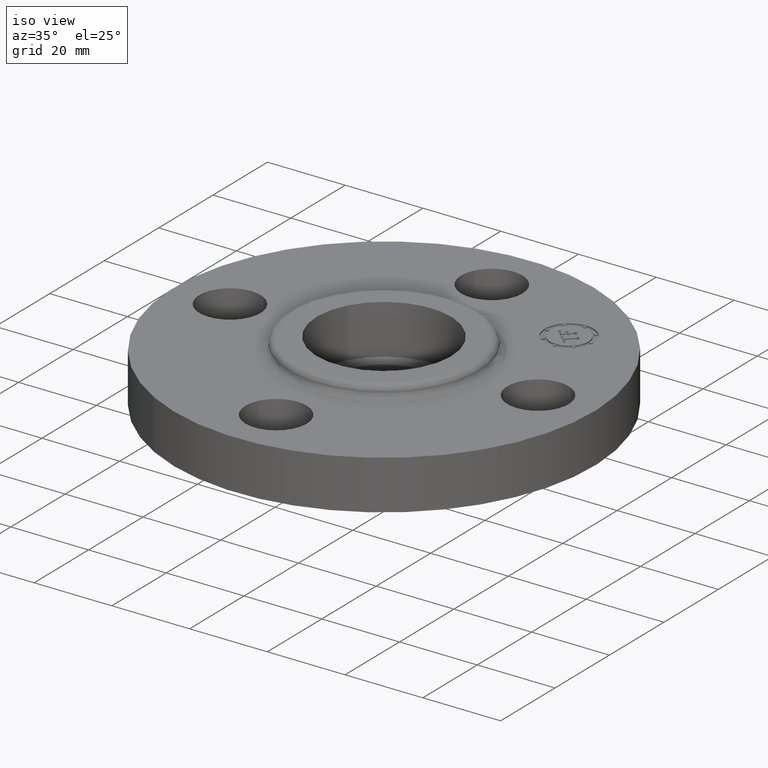
[diagram: clean part render]
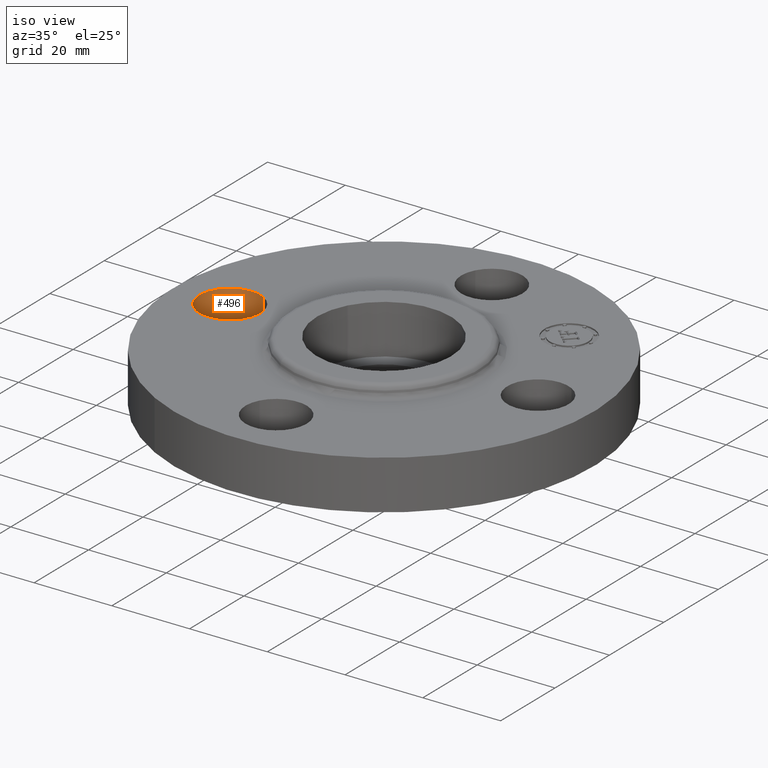
[diagram: same view with one face highlighted and labeled with its STEP entity id]
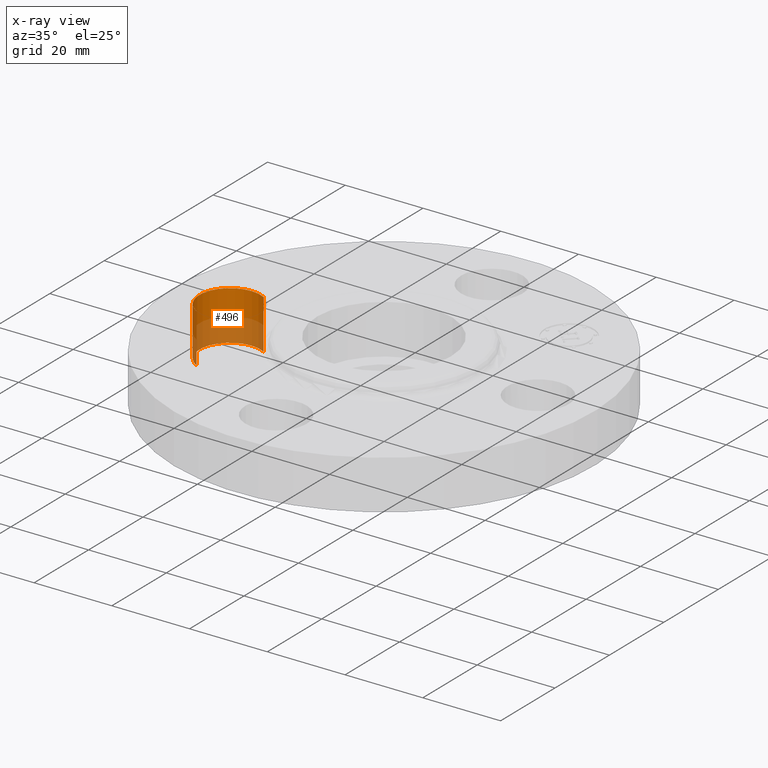
[diagram: x-ray of the same camera — body ghosted, the highlighted face saturated]
A machine part, iso view. The second image highlights one B-rep face of the part: STEP entity #496.
The next image is the same camera in x-ray: the body ghosted, the highlighted face saturated — about 46% of this face is hidden behind the body in this view.
In plain terms, the highlighted cylindrical surface (partial cylindrical patch) has radius 7.874 mm, axis along (0, 0, -1).
Its self-contained STEP definition (entity closure, byte-faithful):
#392=AXIS2_PLACEMENT_3D('Circle Axis2P3D',#390,#391,$) ;
#469=AXIS2_PLACEMENT_3D('Cylinder Axis2P3D',#466,#467,#468) ;
#487=AXIS2_PLACEMENT_3D('Circle Axis2P3D',#485,#486,$) ;
#387=CARTESIAN_POINT('Vertex',(-1.41137808304,0.272050594187,0.)) ;
#390=CARTESIAN_POINT('Axis2P3D Location',(-1.56000000001,-2.79741234551E-016,0.)) ;
#394=CARTESIAN_POINT('Vertex',(-1.70862191697,-0.272050594187,0.)) ;
#466=CARTESIAN_POINT('Axis2P3D Location',(-1.56000000001,-2.86567351002E-016,0.496062992128)) ;
#471=CARTESIAN_POINT('Line Origine',(-1.70862191697,-0.272050594187,0.250000000001)) ;
#475=CARTESIAN_POINT('Vertex',(-1.70862191697,-0.272050594187,0.500000000002)) ;
#478=CARTESIAN_POINT('Line Origine',(-1.41137808304,0.272050594187,0.250000000001)) ;
#482=CARTESIAN_POINT('Vertex',(-1.41137808304,0.272050594187,0.500000000002)) ;
#485=CARTESIAN_POINT('Axis2P3D Location',(-1.56000000001,-2.86567351002E-016,0.500000000002)) ;
#391=DIRECTION('Axis2P3D Direction',(0.,0.,-0.0393700787402)) ;
#467=DIRECTION('Axis2P3D Direction',(0.,0.,-0.0393700787402)) ;
#468=DIRECTION('Axis2P3D XDirection',(0.0188750212049,0.0345504945626,0.)) ;
#472=DIRECTION('Vector Direction',(0.,0.,-0.0393700787402)) ;
#479=DIRECTION('Vector Direction',(0.,0.,-0.0393700787402)) ;
#486=DIRECTION('Axis2P3D Direction',(0.,0.,-0.0393700787402)) ;
#473=VECTOR('Line Direction',#472,0.0393700787402) ;
#480=VECTOR('Line Direction',#479,0.0393700787402) ;
#491=ORIENTED_EDGE('',*,*,#477,.F.) ;
#492=ORIENTED_EDGE('',*,*,#396,.T.) ;
#493=ORIENTED_EDGE('',*,*,#484,.T.) ;
#494=ORIENTED_EDGE('',*,*,#489,.F.) ;
#496=ADVANCED_FACE('PartBody',(#495),#470,.F.) ;
#393=CIRCLE('generated circle',#392,0.310000000001) ;
#488=CIRCLE('generated circle',#487,0.310000000001) ;
#470=CYLINDRICAL_SURFACE('generated cylinder',#469,0.310000000001) ;
#396=EDGE_CURVE('',#395,#388,#393,.T.) ;
#477=EDGE_CURVE('',#395,#476,#474,.F.) ;
#484=EDGE_CURVE('',#388,#483,#481,.F.) ;
#489=EDGE_CURVE('',#476,#483,#488,.T.) ;
#490=EDGE_LOOP('',(#491,#492,#493,#494)) ;
#495=FACE_OUTER_BOUND('',#490,.T.) ;
#474=LINE('Line',#471,#473) ;
#481=LINE('Line',#478,#480) ;
#388=VERTEX_POINT('',#387) ;
#395=VERTEX_POINT('',#394) ;
#476=VERTEX_POINT('',#475) ;
#483=VERTEX_POINT('',#482) ;